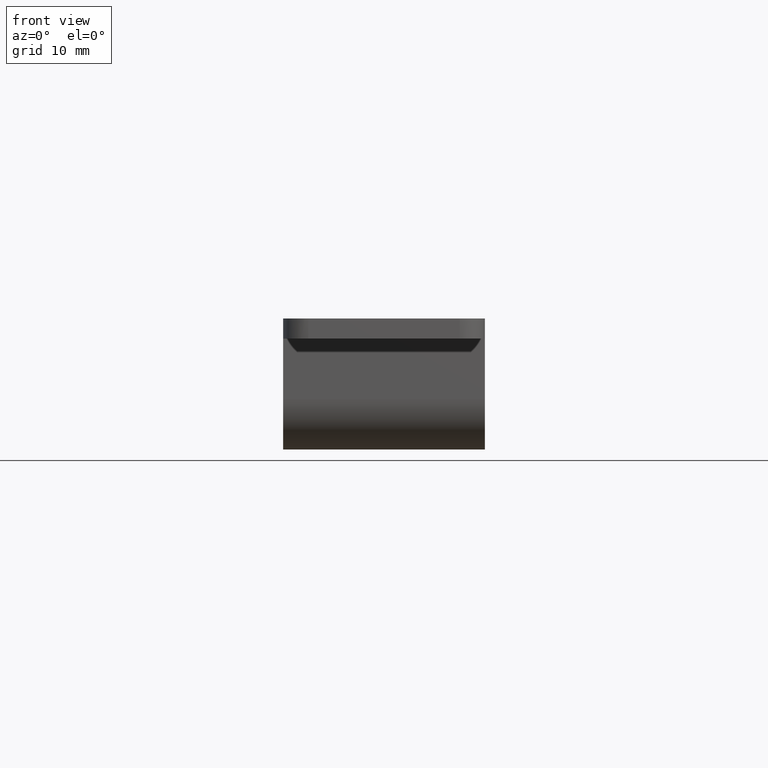
[diagram: clean part render]
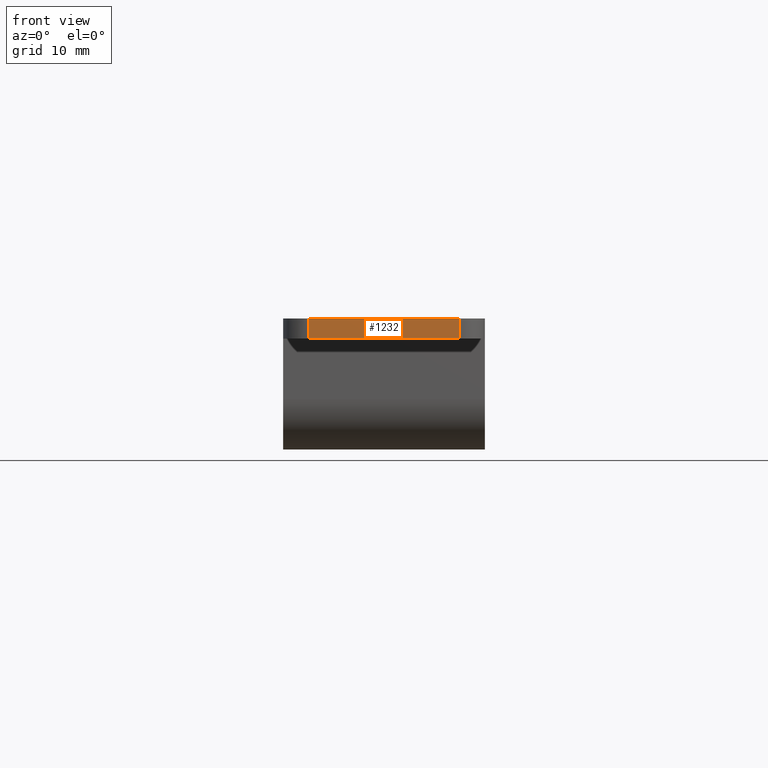
[diagram: same view with one face highlighted and labeled with its STEP entity id]
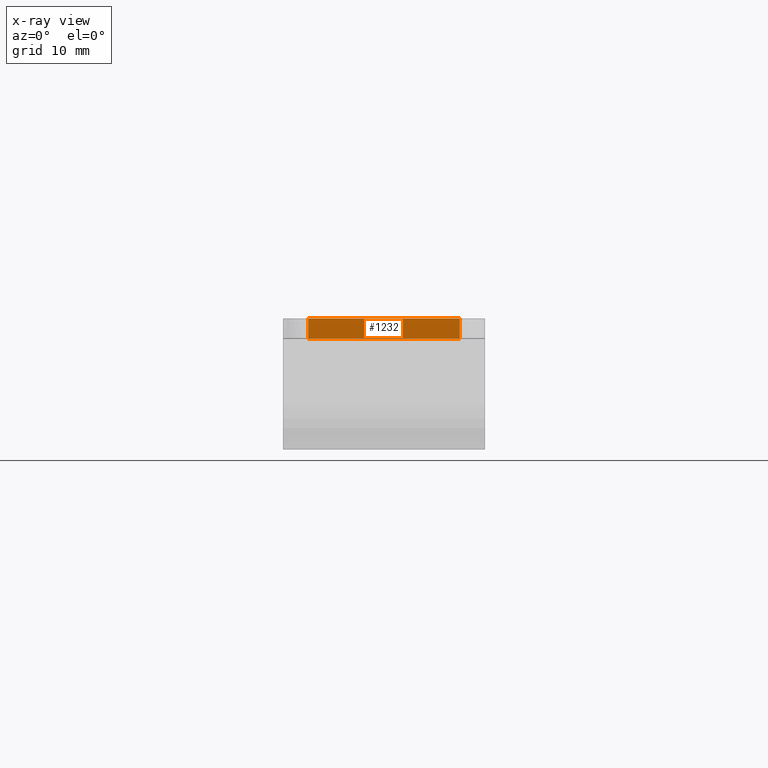
[diagram: x-ray of the same camera — body ghosted, the highlighted face saturated]
A machine part, front view. The second image highlights one B-rep face of the part: STEP entity #1232.
The next image is the same camera in x-ray: the body ghosted, the highlighted face saturated — about 0% of this face is hidden behind the body in this view.
In plain terms, the highlighted face is a freeform B-spline surface patch.
Its self-contained STEP definition (entity closure, byte-faithful):
#716=CARTESIAN_POINT('',(-7.500000000000000,0.0,0.0));
#717=VERTEX_POINT('',#716);
#738=CARTESIAN_POINT('',(-7.500000000000000,0.0,-2.0));
#739=VERTEX_POINT('',#738);
#753=CARTESIAN_POINT('',(-7.500000000000000,0.0,0.0));
#754=CARTESIAN_POINT('',(-7.500000000000000,0.0,-2.0));
#755=QUASI_UNIFORM_CURVE('',1,(#753,#754),.UNSPECIFIED.,.F.,.U.);
#756=EDGE_CURVE('',#717,#739,#755,.T.);
#775=CARTESIAN_POINT('',(7.500000000000000,0.0,0.0));
#776=VERTEX_POINT('',#775);
#792=CARTESIAN_POINT('',(7.500000000000000,0.0,-2.0));
#793=VERTEX_POINT('',#792);
#794=CARTESIAN_POINT('',(7.500000000000000,0.0,-2.0));
#795=CARTESIAN_POINT('',(7.500000000000000,0.0,0.0));
#796=QUASI_UNIFORM_CURVE('',1,(#794,#795),.UNSPECIFIED.,.F.,.U.);
#797=EDGE_CURVE('',#793,#776,#796,.T.);
#1213=CARTESIAN_POINT('',(-8.249249970927089,0.0,-2.099899996123612));
#1214=CARTESIAN_POINT('',(-8.249249970927089,0.0,0.099900049767792));
#1215=CARTESIAN_POINT('',(8.249250373258443,0.0,-2.099899996123612));
#1216=CARTESIAN_POINT('',(8.249250373258443,0.0,0.099900049767792));
#1217=B_SPLINE_SURFACE_WITH_KNOTS('',1,1,((#1213,#1215),(#1214,#1216)),.UNSPECIFIED.,.F.,.F.,.U.,(2,2),(2,2),(0.0,2.199800045891404),(0.0,16.498500344185530),.UNSPECIFIED.);
#1218=CARTESIAN_POINT('',(7.500000000000000,0.0,-2.0));
#1219=CARTESIAN_POINT('',(-7.500000000000000,0.0,-2.0));
#1220=QUASI_UNIFORM_CURVE('',1,(#1218,#1219),.UNSPECIFIED.,.F.,.U.);
#1221=EDGE_CURVE('',#793,#739,#1220,.T.);
#1222=ORIENTED_EDGE('',*,*,#1221,.F.);
#1223=ORIENTED_EDGE('',*,*,#797,.T.);
#1224=CARTESIAN_POINT('',(7.500000000000000,0.0,0.0));
#1225=CARTESIAN_POINT('',(-7.500000000000000,0.0,0.0));
#1226=QUASI_UNIFORM_CURVE('',1,(#1224,#1225),.UNSPECIFIED.,.F.,.U.);
#1227=EDGE_CURVE('',#776,#717,#1226,.T.);
#1228=ORIENTED_EDGE('',*,*,#1227,.T.);
#1229=ORIENTED_EDGE('',*,*,#756,.T.);
#1230=EDGE_LOOP('',(#1222,#1223,#1228,#1229));
#1231=FACE_OUTER_BOUND('',#1230,.T.);
#1232=ADVANCED_FACE('',(#1231),#1217,.F.);